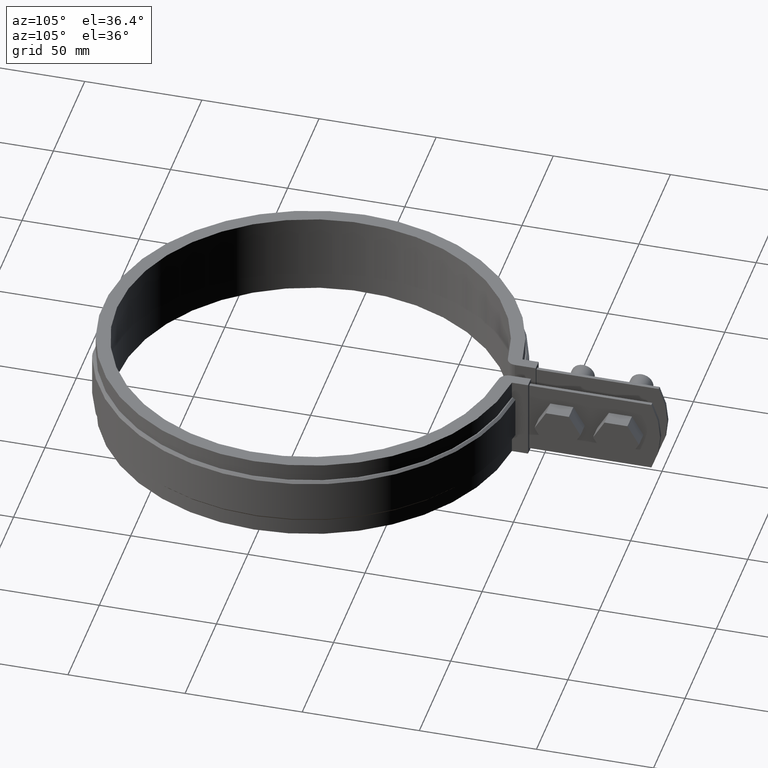
[diagram: clean part render]
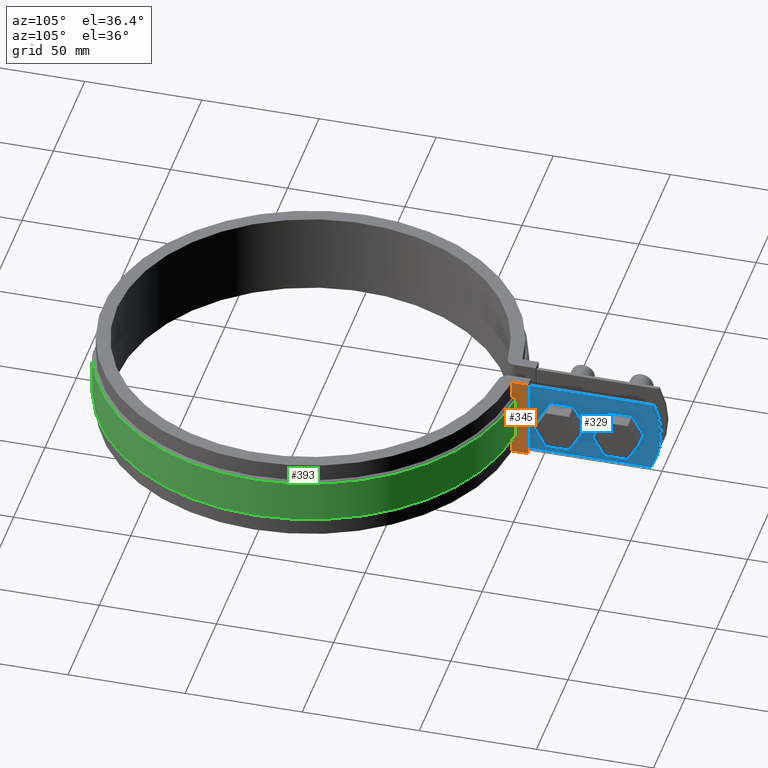
[diagram: same view with three faces highlighted in distinct colors, each labeled with its STEP entity id]
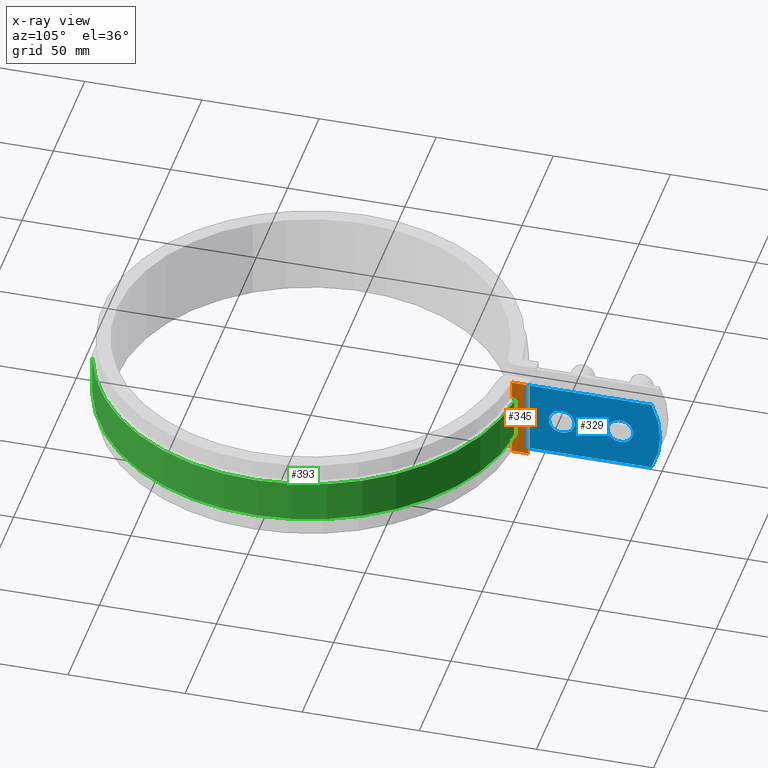
[diagram: x-ray of the same camera — body ghosted, the three highlighted faces saturated]
A machine part, auxiliary view with three faces highlighted in distinct colors.
The next image is the same camera in x-ray (body ghosted, the three faces saturated) — at least one of them is partly hidden behind the body in this view.
Their STEP definitions:

[orange] entity #345 — the highlighted planar face has unit normal (1, -0, 0).
#345 = ADVANCED_FACE( '', ( #544 ), #545, .T. );
#544 = FACE_OUTER_BOUND( '', #1257, .T. );
#545 = PLANE( '', #1258 );
#1257 = EDGE_LOOP( '', ( #2893, #2894, #2895, #2896, #2897, #2898, #2899, #2900, #2901, #2902 ) );
#1258 = AXIS2_PLACEMENT_3D( '', #2903, #2904, #2905 );
#2893 = ORIENTED_EDGE( '', *, *, #4696, .F. );
#2894 = ORIENTED_EDGE( '', *, *, #4697, .T. );
#2895 = ORIENTED_EDGE( '', *, *, #4698, .F. );
#2896 = ORIENTED_EDGE( '', *, *, #4699, .T. );
#2897 = ORIENTED_EDGE( '', *, *, #4700, .T. );
#2898 = ORIENTED_EDGE( '', *, *, #4701, .F. );
#2899 = ORIENTED_EDGE( '', *, *, #4702, .T. );
#2900 = ORIENTED_EDGE( '', *, *, #4689, .T. );
#2901 = ORIENTED_EDGE( '', *, *, #4703, .F. );
#2902 = ORIENTED_EDGE( '', *, *, #4704, .F. );
#2903 = CARTESIAN_POINT( '', ( 8.39999999999999, 88.2009070248147, -33.5000000000000 ) );
#2904 = DIRECTION( '', ( 1.00000000000000, -6.93889390390723E-017, 1.76604891093166E-035 ) );
#2905 = DIRECTION( '', ( -6.93889390390723E-017, -1.00000000000000, 2.54514470950076E-019 ) );
#4689 = EDGE_CURVE( '', #5133, #5130, #5134, .T. );
#4696 = EDGE_CURVE( '', #5146, #5147, #5148, .T. );
#4697 = EDGE_CURVE( '', #5146, #5149, #5150, .T. );
#4698 = EDGE_CURVE( '', #5151, #5149, #5152, .T. );
#4699 = EDGE_CURVE( '', #5151, #5153, #5154, .T. );
#4700 = EDGE_CURVE( '', #5153, #5155, #5156, .T. );
#4701 = EDGE_CURVE( '', #5157, #5155, #5158, .T. );
#4702 = EDGE_CURVE( '', #5157, #5133, #5159, .T. );
#4703 = EDGE_CURVE( '', #5160, #5130, #5161, .T. );
#4704 = EDGE_CURVE( '', #5147, #5160, #5162, .T. );
#5130 = VERTEX_POINT( '', #6804 );
#5133 = VERTEX_POINT( '', #6808 );
#5134 = LINE( '', #6809, #6810 );
#5146 = VERTEX_POINT( '', #6828 );
#5147 = VERTEX_POINT( '', #6829 );
#5148 = LINE( '', #6830, #6831 );
#5149 = VERTEX_POINT( '', #6832 );
#5150 = B_SPLINE_CURVE_WITH_KNOTS( '', 3, ( #6833, #6834, #6835, #6836 ), .UNSPECIFIED., .F., .F., ( 4, 4 ), ( 0.000000000000000, 0.00141734515066830 ), .UNSPECIFIED. );
#5151 = VERTEX_POINT( '', #6837 );
#5152 = LINE( '', #6838, #6839 );
#5153 = VERTEX_POINT( '', #6840 );
#5154 = B_SPLINE_CURVE_WITH_KNOTS( '', 3, ( #6841, #6842, #6843, #6844 ), .UNSPECIFIED., .F., .F., ( 4, 4 ), ( 5.41944938641421E-017, 0.00141734515066831 ), .UNSPECIFIED. );
#5155 = VERTEX_POINT( '', #6845 );
#5156 = LINE( '', #6846, #6847 );
#5157 = VERTEX_POINT( '', #6848 );
#5158 = LINE( '', #6849, #6850 );
#5159 = LINE( '', #6851, #6852 );
#5160 = VERTEX_POINT( '', #6853 );
#5161 = LINE( '', #6854, #6855 );
#5162 = LINE( '', #6856, #6857 );
#6804 = CARTESIAN_POINT( '', ( 8.39999999999999, 95.1000000000000, 1.50000000000000 ) );
#6808 = CARTESIAN_POINT( '', ( 8.39999999999999, 95.1000000000000, -33.5000000000000 ) );
#6809 = CARTESIAN_POINT( '', ( 8.39999999999999, 95.1000000000000, -33.5000000000000 ) );
#6810 = VECTOR( '', #8727, 1000.00000000000 );
#6828 = CARTESIAN_POINT( '', ( 8.39999999999999, 88.7031566518351, -6.00000000000000 ) );
#6829 = CARTESIAN_POINT( '', ( 8.39999999999998, 88.2009070248147, -6.00000000000000 ) );
#6830 = CARTESIAN_POINT( '', ( 8.39999999999999, 89.7075805046597, -6.00000000000000 ) );
#6831 = VECTOR( '', #8734, 1000.00000000000 );
#6832 = CARTESIAN_POINT( '', ( 8.39999999999999, 89.7075805046597, -6.99999999999999 ) );
#6833 = CARTESIAN_POINT( '', ( 8.39999999999999, 88.7031566518351, -6.00000000000000 ) );
#6834 = CARTESIAN_POINT( '', ( 8.39999999999999, 89.0379728961723, -6.33332500304170 ) );
#6835 = CARTESIAN_POINT( '', ( 8.39999999999999, 89.3727807548670, -6.66665842943985 ) );
#6836 = CARTESIAN_POINT( '', ( 8.39999999999999, 89.7075805046597, -7.00000000000000 ) );
#6837 = CARTESIAN_POINT( '', ( 8.39999999999999, 89.7075805046597, -25.0000000000000 ) );
#6838 = CARTESIAN_POINT( '', ( 8.39999999999996, 89.7075805046598, -26.0000000000000 ) );
#6839 = VECTOR( '', #8735, 1000.00000000000 );
#6840 = CARTESIAN_POINT( '', ( 8.39999999999999, 88.7031566518351, -26.0000000000000 ) );
#6841 = CARTESIAN_POINT( '', ( 8.39999999999996, 89.7075805046597, -25.0000000000000 ) );
#6842 = CARTESIAN_POINT( '', ( 8.39999999999996, 89.3727807548670, -25.3333415705602 ) );
#6843 = CARTESIAN_POINT( '', ( 8.39999999999999, 89.0379728961723, -25.6666749969583 ) );
#6844 = CARTESIAN_POINT( '', ( 8.39999999999999, 88.7031566518351, -26.0000000000000 ) );
#6845 = CARTESIAN_POINT( '', ( 8.39999999999998, 88.2009070248147, -26.0000000000000 ) );
#6846 = CARTESIAN_POINT( '', ( 8.39999999999999, 89.7075805046597, -26.0000000000000 ) );
#6847 = VECTOR( '', #8736, 1000.00000000000 );
#6848 = CARTESIAN_POINT( '', ( 8.39999999999998, 88.2009070248147, -33.5000000000000 ) );
#6849 = CARTESIAN_POINT( '', ( 8.39999999999998, 88.2009070248147, -33.5000000000000 ) );
#6850 = VECTOR( '', #8737, 1000.00000000000 );
#6851 = CARTESIAN_POINT( '', ( 8.39999999999999, 88.2009070248147, -33.5000000000000 ) );
#6852 = VECTOR( '', #8738, 1000.00000000000 );
#6853 = CARTESIAN_POINT( '', ( 8.39999999999998, 88.2009070248147, 1.50000000000000 ) );
#6854 = CARTESIAN_POINT( '', ( 8.39999999999999, 88.2009070248147, 1.50000000000000 ) );
#6855 = VECTOR( '', #8739, 1000.00000000000 );
#6856 = CARTESIAN_POINT( '', ( 8.39999999999998, 88.2009070248147, -33.5000000000000 ) );
#6857 = VECTOR( '', #8740, 1000.00000000000 );
#8727 = DIRECTION( '', ( 0.000000000000000, 2.54514470950076E-019, 1.00000000000000 ) );
#8734 = DIRECTION( '', ( 0.000000000000000, -1.00000000000000, 0.000000000000000 ) );
#8735 = DIRECTION( '', ( 0.000000000000000, 0.000000000000000, 1.00000000000000 ) );
#8736 = DIRECTION( '', ( 0.000000000000000, -1.00000000000000, 0.000000000000000 ) );
#8737 = DIRECTION( '', ( 0.000000000000000, 2.54514470950076E-019, 1.00000000000000 ) );
#8738 = DIRECTION( '', ( 6.93889390390723E-017, 1.00000000000000, 0.000000000000000 ) );
#8739 = DIRECTION( '', ( 6.93889390390723E-017, 1.00000000000000, 0.000000000000000 ) );
#8740 = DIRECTION( '', ( 0.000000000000000, 2.54514470950076E-019, 1.00000000000000 ) );

[blue] entity #329 — the highlighted planar face has unit normal (1, 0, 0).
#329 = ADVANCED_FACE( '', ( #501, #502, #503 ), #504, .T. );
#501 = FACE_BOUND( '', #841, .T. );
#502 = FACE_OUTER_BOUND( '', #842, .T. );
#503 = FACE_BOUND( '', #843, .T. );
#504 = PLANE( '', #844 );
#841 = EDGE_LOOP( '', ( #2386 ) );
#842 = EDGE_LOOP( '', ( #2387, #2388, #2389, #2390 ) );
#843 = EDGE_LOOP( '', ( #2391 ) );
#844 = AXIS2_PLACEMENT_3D( '', #2392, #2393, #2394 );
#2386 = ORIENTED_EDGE( '', *, *, #4648, .T. );
#2387 = ORIENTED_EDGE( '', *, *, #4621, .T. );
#2388 = ORIENTED_EDGE( '', *, *, #4652, .T. );
#2389 = ORIENTED_EDGE( '', *, *, #4666, .F. );
#2390 = ORIENTED_EDGE( '', *, *, #4662, .T. );
#2391 = ORIENTED_EDGE( '', *, *, #4667, .T. );
#2392 = CARTESIAN_POINT( '', ( 6.50000000000000, 151.002986998692, 0.000000000000000 ) );
#2393 = DIRECTION( '', ( 1.00000000000000, 6.22721247786546E-017, 0.000000000000000 ) );
#2394 = DIRECTION( '', ( 6.22721247786546E-017, -1.00000000000000, 0.000000000000000 ) );
#4621 = EDGE_CURVE( '', #5020, #5018, #5021, .T. );
#4648 = EDGE_CURVE( '', #5068, #5068, #5069, .F. );
#4652 = EDGE_CURVE( '', #5018, #5074, #5076, .F. );
#4662 = EDGE_CURVE( '', #5091, #5020, #5092, .T. );
#4666 = EDGE_CURVE( '', #5091, #5074, #5097, .T. );
#4667 = EDGE_CURVE( '', #5098, #5098, #5099, .F. );
#5018 = VERTEX_POINT( '', #5667 );
#5020 = VERTEX_POINT( '', #5669 );
#5021 = LINE( '', #5670, #5671 );
#5068 = VERTEX_POINT( '', #6268 );
#5069 = CIRCLE( '', #6269, 5.50000000000000 );
#5074 = VERTEX_POINT( '', #6313 );
#5076 = LINE( '', #6315, #6316 );
#5091 = VERTEX_POINT( '', #6414 );
#5092 = CIRCLE( '', #6415, 36.0000000000000 );
#5097 = LINE( '', #6422, #6423 );
#5098 = VERTEX_POINT( '', #6424 );
#5099 = CIRCLE( '', #6425, 5.50000000000000 );
#5667 = CARTESIAN_POINT( '', ( 6.50000000000000, 88.6442891561549, 0.000000000000000 ) );
#5669 = CARTESIAN_POINT( '', ( 6.50000000000000, 147.252017991886, -4.33680868994202E-016 ) );
#5670 = CARTESIAN_POINT( '', ( 6.50000000000000, 151.002986998692, 0.000000000000000 ) );
#5671 = VECTOR( '', #8647, 1000.00000000000 );
#6268 = CARTESIAN_POINT( '', ( 6.50000000000001, 139.502986998692, -16.0000000000000 ) );
#6269 = AXIS2_PLACEMENT_3D( '', #8667, #8668, #8669 );
#6313 = CARTESIAN_POINT( '', ( 6.50000000000000, 88.6442891561549, -32.0000000000000 ) );
#6315 = CARTESIAN_POINT( '', ( 6.50000000000000, 88.6442891561549, -32.0000000000000 ) );
#6316 = VECTOR( '', #8676, 1000.00000000000 );
#6414 = CARTESIAN_POINT( '', ( 6.50000000000000, 147.252017991886, -32.0000000000000 ) );
#6415 = AXIS2_PLACEMENT_3D( '', #8690, #8691, #8692 );
#6422 = CARTESIAN_POINT( '', ( 6.50000000000000, 151.002986998692, -32.0000000000000 ) );
#6423 = VECTOR( '', #8698, 1000.00000000000 );
#6424 = CARTESIAN_POINT( '', ( 6.50000000000001, 114.502986998692, -16.0000000000000 ) );
#6425 = AXIS2_PLACEMENT_3D( '', #8699, #8700, #8701 );
#8647 = DIRECTION( '', ( 6.22721247786546E-017, -1.00000000000000, 0.000000000000000 ) );
#8667 = CARTESIAN_POINT( '', ( 6.50000000000001, 134.002986998692, -16.0000000000000 ) );
#8668 = DIRECTION( '', ( 1.00000000000000, 6.22721247786546E-017, 0.000000000000000 ) );
#8669 = DIRECTION( '', ( -6.22721247786546E-017, 1.00000000000000, 0.000000000000000 ) );
#8676 = DIRECTION( '', ( 0.000000000000000, 0.000000000000000, 1.00000000000000 ) );
#8690 = CARTESIAN_POINT( '', ( 6.50000000000001, 115.002986998692, -16.0000000000000 ) );
#8691 = DIRECTION( '', ( 1.00000000000000, 6.22721247786546E-017, 0.000000000000000 ) );
#8692 = DIRECTION( '', ( -6.22721247786546E-017, 1.00000000000000, 0.000000000000000 ) );
#8698 = DIRECTION( '', ( 6.22721247786546E-017, -1.00000000000000, 0.000000000000000 ) );
#8699 = CARTESIAN_POINT( '', ( 6.50000000000001, 109.002986998692, -16.0000000000000 ) );
#8700 = DIRECTION( '', ( 1.00000000000000, 6.22721247786546E-017, 0.000000000000000 ) );
#8701 = DIRECTION( '', ( -6.22721247786546E-017, 1.00000000000000, 0.000000000000000 ) );

[green] entity #393 — the highlighted cylindrical surface (partial cylindrical patch) has radius 90.1 mm, axis along (0, 0, -1).
#393 = ADVANCED_FACE( '', ( #642 ), #643, .T. );
#642 = FACE_OUTER_BOUND( '', #1728, .T. );
#643 = CYLINDRICAL_SURFACE( '', #1729, 90.1000000000000 );
#1728 = EDGE_LOOP( '', ( #4052, #4053, #4054, #4055 ) );
#1729 = AXIS2_PLACEMENT_3D( '', #4056, #4057, #4058 );
#4052 = ORIENTED_EDGE( '', *, *, #4698, .T. );
#4053 = ORIENTED_EDGE( '', *, *, #4827, .T. );
#4054 = ORIENTED_EDGE( '', *, *, #4841, .F. );
#4055 = ORIENTED_EDGE( '', *, *, #4814, .T. );
#4056 = CARTESIAN_POINT( '', ( -3.46944695195361E-015, 1.38777878078145E-014, -26.0000000000000 ) );
#4057 = DIRECTION( '', ( 0.000000000000000, 0.000000000000000, -1.00000000000000 ) );
#4058 = DIRECTION( '', ( 0.279817321684446, -0.960053262316911, 0.000000000000000 ) );
#4698 = EDGE_CURVE( '', #5151, #5149, #5152, .T. );
#4814 = EDGE_CURVE( '', #5348, #5151, #5349, .T. );
#4827 = EDGE_CURVE( '', #5149, #5363, #5369, .F. );
#4841 = EDGE_CURVE( '', #5348, #5363, #5387, .T. );
#5149 = VERTEX_POINT( '', #6832 );
#5151 = VERTEX_POINT( '', #6837 );
#5152 = LINE( '', #6838, #6839 );
#5348 = VERTEX_POINT( '', #8100 );
#5349 = CIRCLE( '', #8101, 90.1000000000000 );
#5363 = VERTEX_POINT( '', #8120 );
#5369 = CIRCLE( '', #8127, 90.1000000000000 );
#5387 = LINE( '', #8152, #8153 );
#6832 = CARTESIAN_POINT( '', ( 8.39999999999999, 89.7075805046597, -6.99999999999999 ) );
#6837 = CARTESIAN_POINT( '', ( 8.39999999999999, 89.7075805046597, -25.0000000000000 ) );
#6838 = CARTESIAN_POINT( '', ( 8.39999999999996, 89.7075805046598, -26.0000000000000 ) );
#6839 = VECTOR( '', #8735, 1000.00000000000 );
#8100 = CARTESIAN_POINT( '', ( 25.2115406837686, -86.5007989347537, -25.0000000000000 ) );
#8101 = AXIS2_PLACEMENT_3D( '', #8888, #8889, #8890 );
#8120 = CARTESIAN_POINT( '', ( 25.2115406837686, -86.5007989347537, -6.99999999999999 ) );
#8127 = AXIS2_PLACEMENT_3D( '', #8915, #8916, #8917 );
#8152 = CARTESIAN_POINT( '', ( 25.2115406837686, -86.5007989347537, -26.0000000000000 ) );
#8153 = VECTOR( '', #8943, 1000.00000000000 );
#8735 = DIRECTION( '', ( 0.000000000000000, 0.000000000000000, 1.00000000000000 ) );
#8888 = CARTESIAN_POINT( '', ( -3.46944695195361E-015, 1.38777878078145E-014, -25.0000000000000 ) );
#8889 = DIRECTION( '', ( 0.000000000000000, 0.000000000000000, 1.00000000000000 ) );
#8890 = DIRECTION( '', ( 1.00000000000000, 0.000000000000000, 0.000000000000000 ) );
#8915 = CARTESIAN_POINT( '', ( -3.46944695195361E-015, 1.38777878078145E-014, -7.00000000000000 ) );
#8916 = DIRECTION( '', ( 0.000000000000000, 0.000000000000000, 1.00000000000000 ) );
#8917 = DIRECTION( '', ( 1.00000000000000, 0.000000000000000, 0.000000000000000 ) );
#8943 = DIRECTION( '', ( 0.000000000000000, 0.000000000000000, 1.00000000000000 ) );